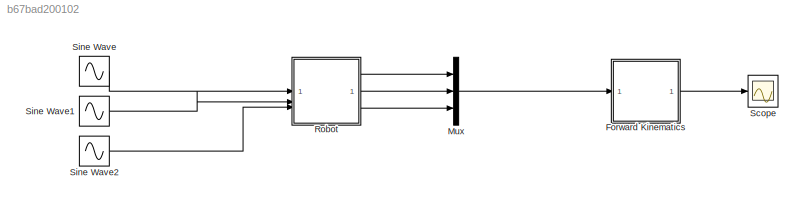
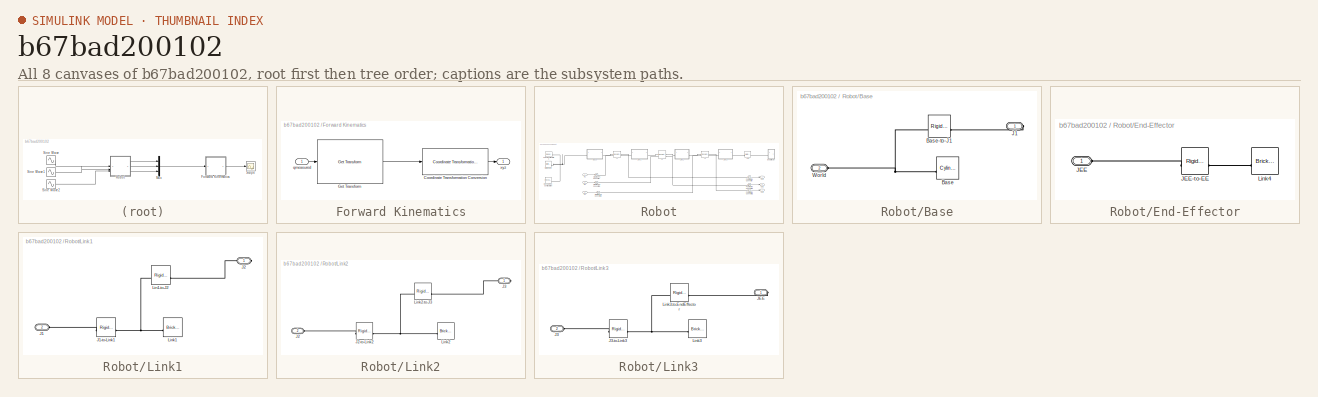
[diagram: thumbnail index - all 8 canvases of the model, root first then tree order]
MODEL slx_b67bad200102
KIND model
CONFIG AbsTol = auto
CONFIG EnableMultiTasking = off
CONFIG FixedStep = auto
CONFIG MaxStep = auto
CONFIG MinStep = auto
CONFIG RelTol = 1e-3
CONFIG SampleTimeConstraint = Unconstrained
CONFIG SolverName = VariableStepAuto
CONFIG StartTime = 0.0
CONFIG StopTime = 10.0
BLOCK [SubSystem] Forward Kinematics
BLOCK [Reference] Forward Kinematics/Coordinate Transformation Conversion  REF=robotcorelib/Coordinate Transformation Conversion
  LibrarySourceBlock = robotutilslib/Coordinate Transformation Conversion
  SourceBlock = robotcorelib/Coordinate Transformation Conversion
  SourceType = robotics.slcore.internal.block.CoordinateTransformationConversion
BLOCK [Reference] Forward Kinematics/Get Transform  REF=robotmaniplib/Get Transform
  SourceBlock = robotmaniplib/Get Transform
  SourceType = Get Transform
BLOCK [Inport] Forward Kinematics/qmeasured
BLOCK [Outport] Forward Kinematics/xyz
BLOCK [Mux] Mux
  DisplayOption = bar
  Inputs = 3
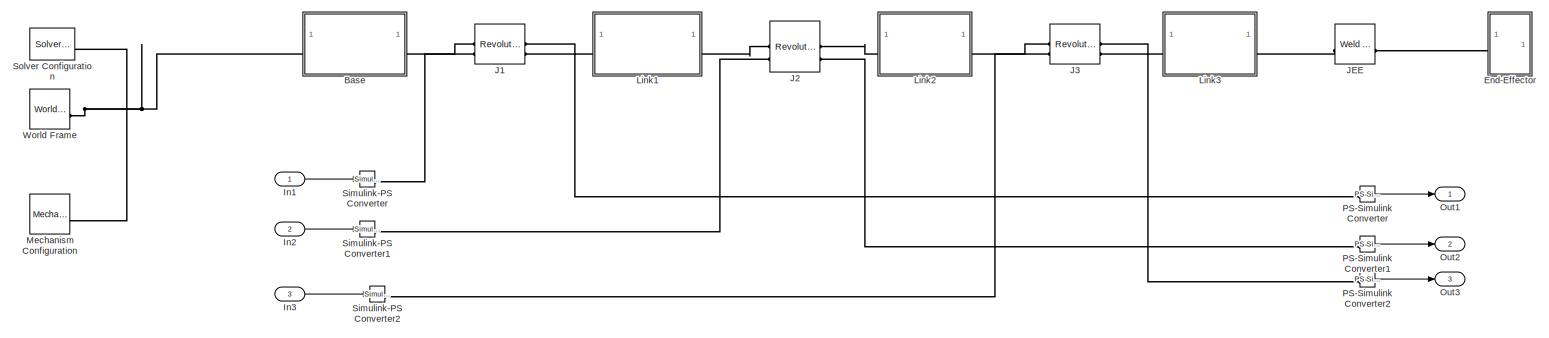
[diagram: Robot - part 1/1, most of the canvas]
BLOCK [SubSystem] Robot
BLOCK [SubSystem] Robot/Base
BLOCK [Reference] Robot/Base/Base  REF=sm_lib/Body Elements/Cylindrical Solid
  SourceBlock = sm_lib/Body Elements/Cylindrical Solid
  SourceType = Cylindrical Solid
BLOCK [Reference] Robot/Base/Base-to-J1  REF=sm_lib/Frames and
Transforms/Rigid
Transform
  SourceBlock = sm_lib/Frames and\nTransforms/Rigid\nTransform
  SourceType = Rigid\nTransform
BLOCK [PMIOPort] Robot/Base/J1
  Side = Right
BLOCK [PMIOPort] Robot/Base/World
  Port = 2
  Side = Left
BLOCK [SubSystem] Robot/End-Effector
BLOCK [PMIOPort] Robot/End-Effector/JEE
  Side = Left
BLOCK [Reference] Robot/End-Effector/JEE-to-EE  REF=sm_lib/Frames and
Transforms/Rigid
Transform
  SourceBlock = sm_lib/Frames and\nTransforms/Rigid\nTransform
  SourceType = Rigid\nTransform
BLOCK [Reference] Robot/End-Effector/Link4  REF=sm_lib/Body Elements/Brick Solid
  SourceBlock = sm_lib/Body Elements/Brick Solid
  SourceType = Brick Solid
BLOCK [Inport] Robot/In1
BLOCK [Inport] Robot/In2
  Port = 2
BLOCK [Inport] Robot/In3
  Port = 3
BLOCK [Reference] Robot/J1  REF=sm_lib/Joints/Revolute Joint
  SourceBlock = sm_lib/Joints/Revolute Joint
  SourceType = Revolute Joint
BLOCK [Reference] Robot/J2  REF=sm_lib/Joints/Revolute Joint
  SourceBlock = sm_lib/Joints/Revolute Joint
  SourceType = Revolute Joint
BLOCK [Reference] Robot/J3  REF=sm_lib/Joints/Revolute Joint
  SourceBlock = sm_lib/Joints/Revolute Joint
  SourceType = Revolute Joint
BLOCK [Reference] Robot/JEE  REF=sm_lib/Joints/Weld Joint
  SourceBlock = sm_lib/Joints/Weld Joint
  SourceType = Weld Joint
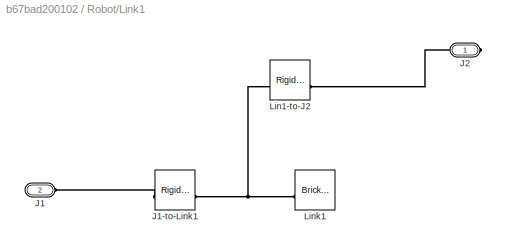
BLOCK [SubSystem] Robot/Link1
BLOCK [PMIOPort] Robot/Link1/J1
  Port = 2
  Side = Left
BLOCK [Reference] Robot/Link1/J1-to-Link1  REF=sm_lib/Frames and
Transforms/Rigid
Transform
  SourceBlock = sm_lib/Frames and\nTransforms/Rigid\nTransform
  SourceType = Rigid\nTransform
BLOCK [PMIOPort] Robot/Link1/J2
  Side = Right
BLOCK [Reference] Robot/Link1/Lin1-to-J2  REF=sm_lib/Frames and
Transforms/Rigid
Transform
  SourceBlock = sm_lib/Frames and\nTransforms/Rigid\nTransform
  SourceType = Rigid\nTransform
BLOCK [Reference] Robot/Link1/Link1  REF=sm_lib/Body Elements/Brick Solid
  SourceBlock = sm_lib/Body Elements/Brick Solid
  SourceType = Brick Solid
BLOCK [SubSystem] Robot/Link2
BLOCK [PMIOPort] Robot/Link2/J2
  Port = 2
  Side = Left
BLOCK [Reference] Robot/Link2/J2-to-Link2  REF=sm_lib/Frames and
Transforms/Rigid
Transform
  SourceBlock = sm_lib/Frames and\nTransforms/Rigid\nTransform
  SourceType = Rigid\nTransform
BLOCK [PMIOPort] Robot/Link2/J3
  Side = Right
BLOCK [Reference] Robot/Link2/Link2  REF=sm_lib/Body Elements/Brick Solid
  SourceBlock = sm_lib/Body Elements/Brick Solid
  SourceType = Brick Solid
BLOCK [Reference] Robot/Link2/Link2-to-J3  REF=sm_lib/Frames and
Transforms/Rigid
Transform
  SourceBlock = sm_lib/Frames and\nTransforms/Rigid\nTransform
  SourceType = Rigid\nTransform
BLOCK [SubSystem] Robot/Link3
BLOCK [PMIOPort] Robot/Link3/J3
  Port = 2
  Side = Left
BLOCK [Reference] Robot/Link3/J3-to-Link3  REF=sm_lib/Frames and
Transforms/Rigid
Transform
  SourceBlock = sm_lib/Frames and\nTransforms/Rigid\nTransform
  SourceType = Rigid\nTransform
BLOCK [PMIOPort] Robot/Link3/JEE
  Side = Right
BLOCK [Reference] Robot/Link3/Link3  REF=sm_lib/Body Elements/Brick Solid
  SourceBlock = sm_lib/Body Elements/Brick Solid
  SourceType = Brick Solid
BLOCK [Reference] Robot/Link3/Link3-to-EndEffector  REF=sm_lib/Frames and
Transforms/Rigid
Transform
  SourceBlock = sm_lib/Frames and\nTransforms/Rigid\nTransform
  SourceType = Rigid\nTransform
BLOCK [Reference] Robot/Mechanism Configuration  REF=sm_lib/Utilities/Mechanism
Configuration
  SourceBlock = sm_lib/Utilities/Mechanism\nConfiguration
  SourceType = Mechanism\nConfiguration
BLOCK [Outport] Robot/Out1
BLOCK [Outport] Robot/Out2
  Port = 2
BLOCK [Outport] Robot/Out3
  Port = 3
BLOCK [Reference] Robot/PS-Simulink Converter  REF=nesl_utility/PS-Simulink
Converter
  SourceBlock = nesl_utility/PS-Simulink\nConverter
  SourceType = PS-Simulink\nConverter
BLOCK [Reference] Robot/PS-Simulink Converter1  REF=nesl_utility/PS-Simulink
Converter
  SourceBlock = nesl_utility/PS-Simulink\nConverter
  SourceType = PS-Simulink\nConverter
BLOCK [Reference] Robot/PS-Simulink Converter2  REF=nesl_utility/PS-Simulink
Converter
  SourceBlock = nesl_utility/PS-Simulink\nConverter
  SourceType = PS-Simulink\nConverter
BLOCK [Reference] Robot/Simulink-PS Converter  REF=nesl_utility/Simulink-PS
Converter
  SourceBlock = nesl_utility/Simulink-PS\nConverter
  SourceType = Simulink-PS\nConverter
BLOCK [Reference] Robot/Simulink-PS Converter1  REF=nesl_utility/Simulink-PS
Converter
  SourceBlock = nesl_utility/Simulink-PS\nConverter
  SourceType = Simulink-PS\nConverter
BLOCK [Reference] Robot/Simulink-PS Converter2  REF=nesl_utility/Simulink-PS
Converter
  SourceBlock = nesl_utility/Simulink-PS\nConverter
  SourceType = Simulink-PS\nConverter
BLOCK [Reference] Robot/Solver Configuration  REF=nesl_utility/Solver
Configuration
  SourceBlock = nesl_utility/Solver\nConfiguration
  SourceType = Solver\nConfiguration
BLOCK [Reference] Robot/World Frame  REF=sm_lib/Frames and
Transforms/World Frame
  SourceBlock = sm_lib/Frames and\nTransforms/World Frame
  SourceType = World Frame
BLOCK [Scope] Scope
  Floating = off
  NumInputPorts = 1
  ScopeSpecificationString = Simulink.scopes.TimeScopeBlockCfg('CurrentConfiguration', extmgr.ConfigurationSet(extmgr.Configuration('Core','General UI',true),extmgr.Configuration('Core','Source UI',true),extmgr.Configuration('Sources','WiredSimulink',true),extmgr.Configuration('Visuals','Time Domain',true),extmgr.Configuration('Tools','Plot Navigation',true),extmgr.Configuration('Tools','Measurements',true)),'Version','2024b'...<+1ch>
BLOCK [Sin] Sine Wave
  SampleTime = 0
BLOCK [Sin] Sine Wave1
  SampleTime = 0
BLOCK [Sin] Sine Wave2
  SampleTime = 0
LINE Forward Kinematics/Coordinate Transformation Conversion:1 -> Forward Kinematics/xyz:1
LINE Forward Kinematics/Get Transform:1 -> Forward Kinematics/Coordinate Transformation Conversion:1
LINE Forward Kinematics/qmeasured:1 -> Forward Kinematics/Get Transform:1
LINE Forward Kinematics:1 -> Scope:1
LINE Mux:1 -> Forward Kinematics:1
LINE Robot/In1:1 -> Robot/Simulink-PS Converter:1
LINE Robot/In2:1 -> Robot/Simulink-PS Converter1:1
LINE Robot/In3:1 -> Robot/Simulink-PS Converter2:1
LINE Robot/PS-Simulink Converter1:1 -> Robot/Out2:1
LINE Robot/PS-Simulink Converter2:1 -> Robot/Out3:1
LINE Robot/PS-Simulink Converter:1 -> Robot/Out1:1
LINE Robot:1 -> Mux:1
LINE Robot:2 -> Mux:2
LINE Robot:3 -> Mux:3
LINE Sine Wave1:1 -> Robot:2
LINE Sine Wave2:1 -> Robot:3
LINE Sine Wave:1 -> Robot:1
PNET net1: Robot/Base/Base-to-J1:LConn1 -- Robot/Base/Base:RConn1 -- Robot/Base/World:RConn1
PLINE Robot/Base/Base-to-J1:RConn1 -- Robot/Base/J1:RConn1
PNET net2: Robot/Base:LConn1 -- Robot/Mechanism Configuration:RConn1 -- Robot/Solver Configuration:RConn1 -- Robot/World Frame:RConn1
PLINE Robot/Base:RConn1 -- Robot/J1:LConn1
PLINE Robot/End-Effector/JEE-to-EE:LConn1 -- Robot/End-Effector/JEE:RConn1
PLINE Robot/End-Effector/JEE-to-EE:RConn1 -- Robot/End-Effector/Link4:RConn1
PLINE Robot/End-Effector:LConn1 -- Robot/JEE:RConn1
PLINE Robot/J1:LConn2 -- Robot/Simulink-PS Converter:RConn1
PLINE Robot/J1:RConn1 -- Robot/Link1:LConn1
PLINE Robot/J1:RConn2 -- Robot/PS-Simulink Converter:LConn1
PLINE Robot/J2:LConn1 -- Robot/Link1:RConn1
PLINE Robot/J2:LConn2 -- Robot/Simulink-PS Converter1:RConn1
PLINE Robot/J2:RConn1 -- Robot/Link2:LConn1
PLINE Robot/J2:RConn2 -- Robot/PS-Simulink Converter1:LConn1
PLINE Robot/J3:LConn1 -- Robot/Link2:RConn1
PLINE Robot/J3:LConn2 -- Robot/Simulink-PS Converter2:RConn1
PLINE Robot/J3:RConn1 -- Robot/Link3:LConn1
PLINE Robot/J3:RConn2 -- Robot/PS-Simulink Converter2:LConn1
PLINE Robot/JEE:LConn1 -- Robot/Link3:RConn1
PLINE Robot/Link1/J1-to-Link1:LConn1 -- Robot/Link1/J1:RConn1
PNET net3: Robot/Link1/J1-to-Link1:RConn1 -- Robot/Link1/Lin1-to-J2:LConn1 -- Robot/Link1/Link1:RConn1
PLINE Robot/Link1/J2:RConn1 -- Robot/Link1/Lin1-to-J2:RConn1
PLINE Robot/Link2/J2-to-Link2:LConn1 -- Robot/Link2/J2:RConn1
PNET net4: Robot/Link2/J2-to-Link2:RConn1 -- Robot/Link2/Link2-to-J3:LConn1 -- Robot/Link2/Link2:RConn1
PLINE Robot/Link2/J3:RConn1 -- Robot/Link2/Link2-to-J3:RConn1
PLINE Robot/Link3/J3-to-Link3:LConn1 -- Robot/Link3/J3:RConn1
PNET net5: Robot/Link3/J3-to-Link3:RConn1 -- Robot/Link3/Link3-to-EndEffector:LConn1 -- Robot/Link3/Link3:RConn1
PLINE Robot/Link3/JEE:RConn1 -- Robot/Link3/Link3-to-EndEffector:RConn1
note: PNET lines group multi-terminal physical nets as a canonical sorted terminal list (undirected conserving connections); 2-terminal nets keep the pairwise PLINE form
